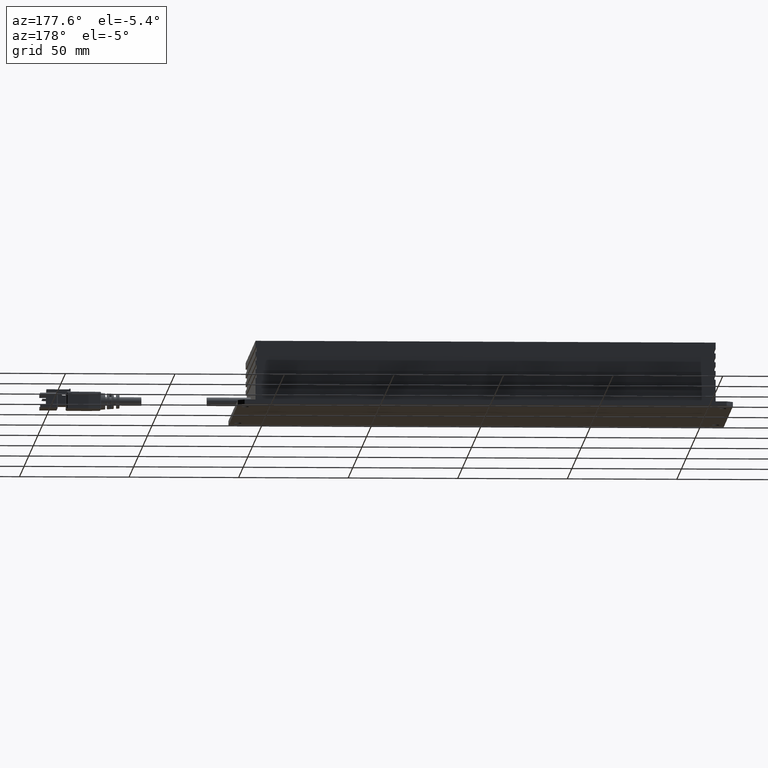
[diagram: clean part render]
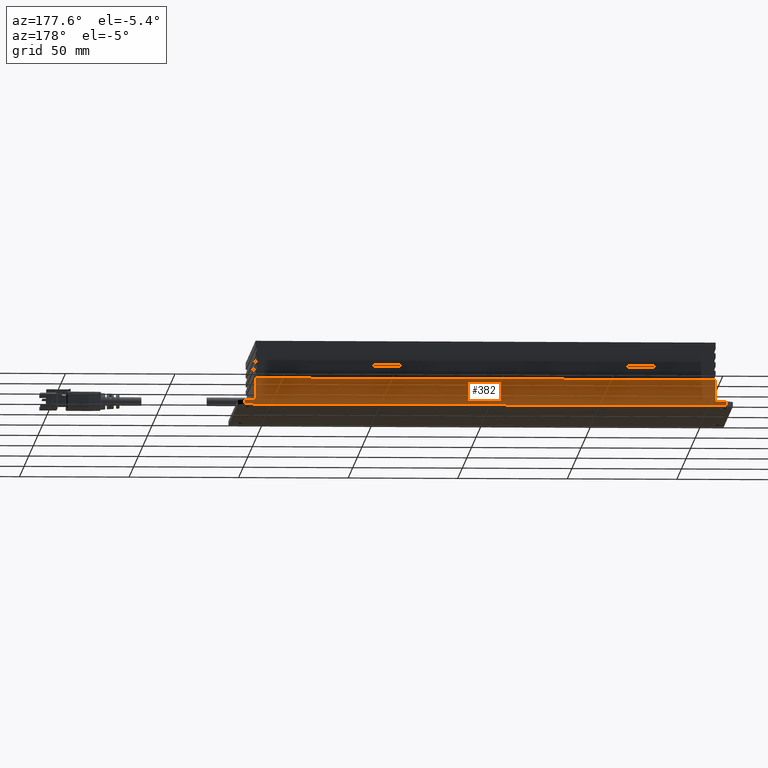
[diagram: same view with one face highlighted and labeled with its STEP entity id]
A machine part, auxiliary view. The second image highlights one B-rep face of the part: STEP entity #382.
In plain terms, the highlighted planar face has unit normal (0, 1, -0).
Its self-contained STEP definition (entity closure, byte-faithful):
#382=ADVANCED_FACE('0:300388',(#915),#916,.T.);
#915=FACE_OUTER_BOUND('',#1606,.T.);
#916=PLANE('',#1607);
#1606=EDGE_LOOP('',(#2904,#2905,#2906,#2907,#2908,#2909,#2910,#2911));
#1607=AXIS2_PLACEMENT_3D('',#2912,#2913,#2914);
#2904=ORIENTED_EDGE('',*,*,#4545,.T.);
#2905=ORIENTED_EDGE('',*,*,#4576,.F.);
#2906=ORIENTED_EDGE('',*,*,#4591,.F.);
#2907=ORIENTED_EDGE('',*,*,#4502,.T.);
#2908=ORIENTED_EDGE('',*,*,#4472,.F.);
#2909=ORIENTED_EDGE('',*,*,#4495,.T.);
#2910=ORIENTED_EDGE('',*,*,#4451,.T.);
#2911=ORIENTED_EDGE('',*,*,#4568,.F.);
#2912=CARTESIAN_POINT('',(0.113,0.0539999999999996,-2.02962646689286E-16));
#2913=DIRECTION('',(3.21964677141295E-15,1.0,-3.71352796603441E-15));
#2914=DIRECTION('',(-1.0,3.21964677141295E-15,0.0));
#4451=EDGE_CURVE('0:300520',#5223,#5224,#5225,.T.);
#4472=EDGE_CURVE('0:300559',#5260,#5261,#5262,.T.);
#4495=EDGE_CURVE('0:300580',#5260,#5223,#5300,.T.);
#4502=EDGE_CURVE('0:300862',#5308,#5261,#5309,.T.);
#4545=EDGE_CURVE('0:300895',#5374,#5372,#5375,.T.);
#4568=EDGE_CURVE('0:300901',#5374,#5224,#5405,.T.);
#4576=EDGE_CURVE('0:300898',#5415,#5372,#5416,.T.);
#4591=EDGE_CURVE('0:300826',#5308,#5415,#5434,.T.);
#5223=VERTEX_POINT('',#6338);
#5224=VERTEX_POINT('',#6339);
#5225=LINE('',#6340,#6341);
#5260=VERTEX_POINT('',#6390);
#5261=VERTEX_POINT('',#6391);
#5262=LINE('',#6392,#6393);
#5300=LINE('',#6449,#6450);
#5308=VERTEX_POINT('',#6462);
#5309=LINE('',#6463,#6464);
#5372=VERTEX_POINT('',#6556);
#5374=VERTEX_POINT('',#6559);
#5375=LINE('',#6560,#6561);
#5405=LINE('',#6605,#6606);
#5415=VERTEX_POINT('',#6620);
#5416=LINE('',#6621,#6622);
#5434=LINE('',#6649,#6650);
#6338=CARTESIAN_POINT('',(0.11,0.0539999999999996,-2.02962646689286E-16));
#6339=CARTESIAN_POINT('',(-0.11,0.0540000000000003,-2.02962646689286E-16));
#6340=CARTESIAN_POINT('',(0.11,0.0539999999999996,-2.02962646689286E-16));
#6341=VECTOR('',#7953,1.0);
#6390=CARTESIAN_POINT('',(0.11,0.0539999999999996,0.0019999999999998));
#6391=CARTESIAN_POINT('',(0.105,0.0539999999999996,0.0019999999999998));
#6392=CARTESIAN_POINT('',(0.11,0.0539999999999996,0.0019999999999998));
#6393=VECTOR('',#7974,1.0);
#6449=CARTESIAN_POINT('',(0.11,0.0539999999999996,0.0019999999999998));
#6450=VECTOR('',#7993,1.0);
#6462=CARTESIAN_POINT('',(0.105,0.0539999999999997,0.0118999999999998));
#6463=CARTESIAN_POINT('',(0.105,0.0539999999999997,0.0118999999999998));
#6464=VECTOR('',#7998,1.0);
#6556=CARTESIAN_POINT('',(-0.105,0.0540000000000003,0.0019999999999998));
#6559=CARTESIAN_POINT('',(-0.11,0.0540000000000003,0.0019999999999998));
#6560=CARTESIAN_POINT('',(-0.11,0.0540000000000003,0.0019999999999998));
#6561=VECTOR('',#8035,1.0);
#6605=CARTESIAN_POINT('',(-0.11,0.0540000000000003,0.0019999999999998));
#6606=VECTOR('',#8050,1.0);
#6620=CARTESIAN_POINT('',(-0.105,0.0540000000000003,0.0118999999999998));
#6621=CARTESIAN_POINT('',(-0.105,0.0540000000000003,0.0118999999999998));
#6622=VECTOR('',#8055,1.0);
#6649=CARTESIAN_POINT('',(0.105,0.0539999999999997,0.0118999999999998));
#6650=VECTOR('',#8065,1.0);
#7953=DIRECTION('',(-1.0,3.21964677141295E-15,0.0));
#7974=DIRECTION('',(-1.0,3.21964677141295E-15,0.0));
#7993=DIRECTION('',(-1.20301288046204E-29,-3.71352796603441E-15,-1.0));
#7998=DIRECTION('',(-1.20301288046204E-29,-3.71352796603441E-15,-1.0));
#8035=DIRECTION('',(1.0,-3.21964677141295E-15,0.0));
#8050=DIRECTION('',(-1.20301288046204E-29,-3.71352796603441E-15,-1.0));
#8055=DIRECTION('',(-1.20301288046204E-29,-3.71352796603441E-15,-1.0));
#8065=DIRECTION('',(-1.0,3.21964677141295E-15,0.0));